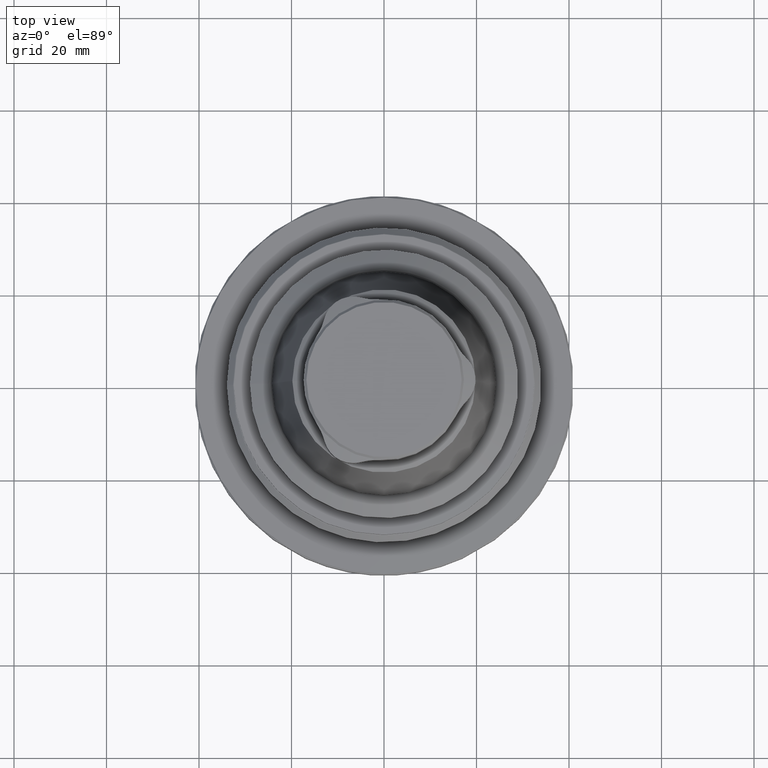
[diagram: clean part render]
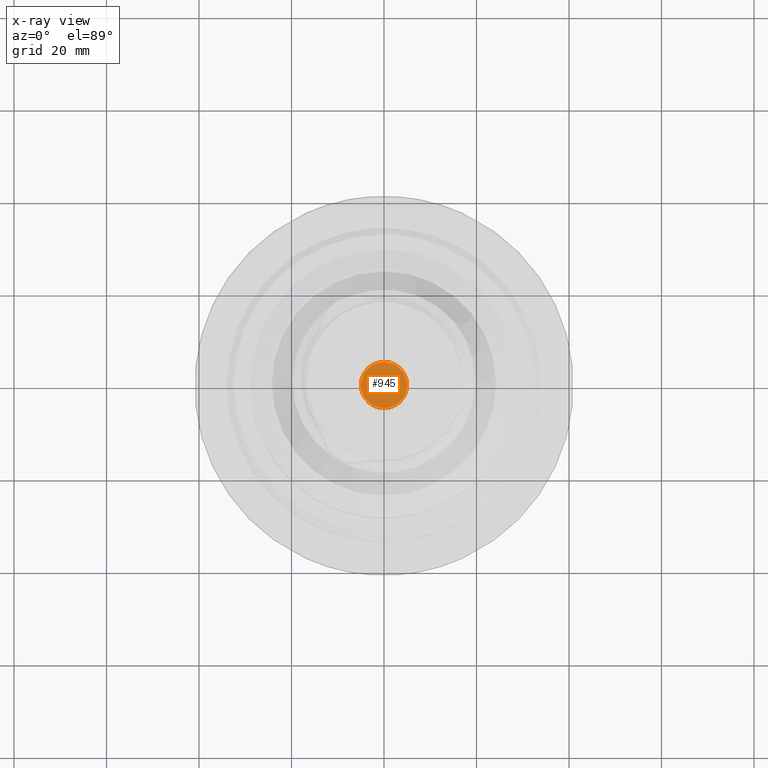
[diagram: x-ray — body ghosted, one internal face saturated and labeled with its STEP entity id]
A machine part, top view, then the same camera in x-ray: the body is ghosted and one INTERNAL B-rep face — a face not visible from any outside direction — is saturated and labeled: STEP entity #945.
In plain terms, the highlighted planar face has unit normal (0, 0, 1).
Its self-contained STEP definition (entity closure, byte-faithful):
#109=PLANE('',#1073);
#162=CIRCLE('',#1072,5.);
#404=ORIENTED_EDGE('',*,*,#531,.F.);
#531=EDGE_CURVE('',#623,#623,#162,.T.);
#623=VERTEX_POINT('',#1794);
#756=EDGE_LOOP('',(#404));
#851=FACE_BOUND('',#756,.T.);
#945=ADVANCED_FACE('',(#851),#109,.F.);
#1072=AXIS2_PLACEMENT_3D('',#1793,#1328,#1329);
#1073=AXIS2_PLACEMENT_3D('',#1795,#1330,#1331);
#1328=DIRECTION('',(0.,0.,1.));
#1329=DIRECTION('',(0.,1.,0.));
#1330=DIRECTION('',(0.,0.,1.));
#1331=DIRECTION('',(1.,0.,0.));
#1793=CARTESIAN_POINT('',(0.,0.,5.));
#1794=CARTESIAN_POINT('',(0.,5.,5.));
#1795=CARTESIAN_POINT('',(0.,0.,5.));